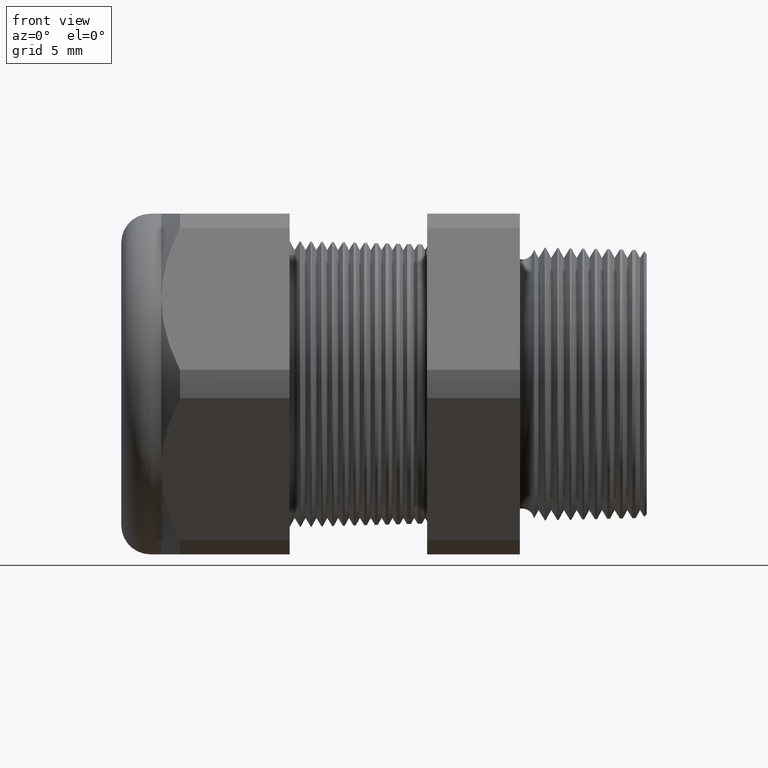
[diagram: clean part render]
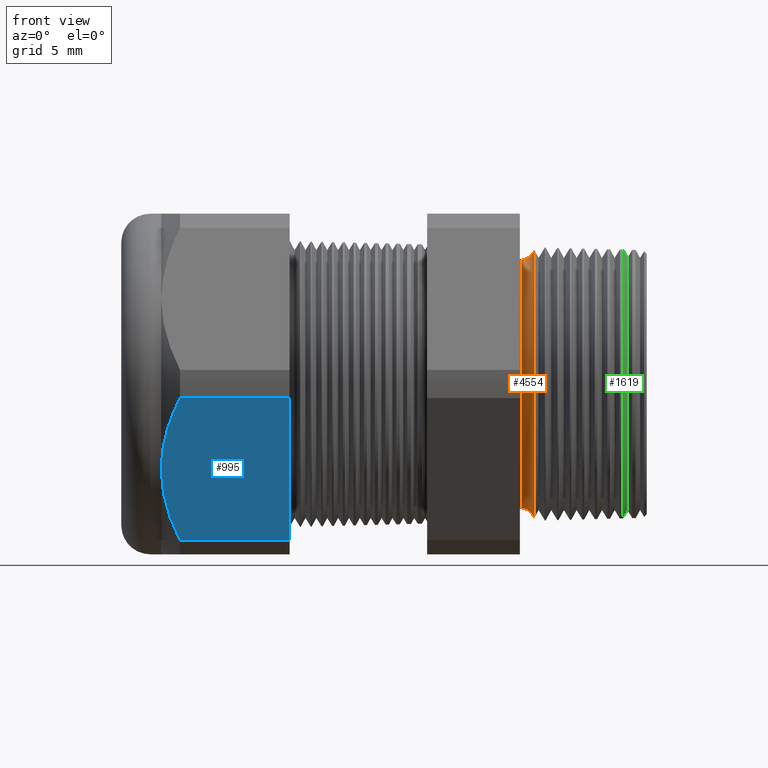
[diagram: same view with three faces highlighted in distinct colors, each labeled with its STEP entity id]
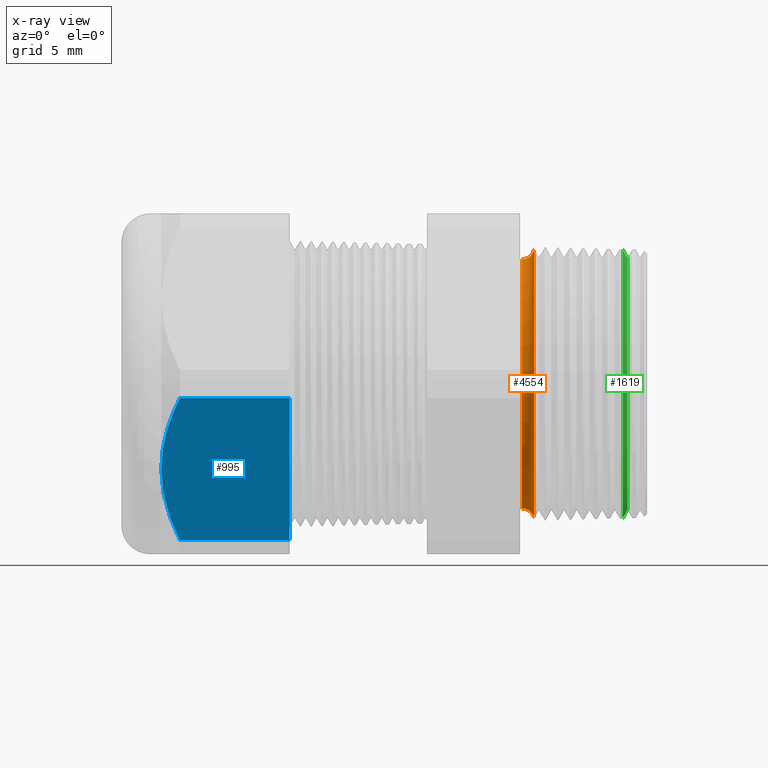
[diagram: x-ray of the same camera — body ghosted, the three highlighted faces saturated]
A machine part, front view with three faces highlighted in distinct colors.
The next image is the same camera in x-ray (body ghosted, the three faces saturated) — at least one of them is partly hidden behind the body in this view.
Their STEP definitions:

[orange] entity #4554 — the highlighted toroidal blend (fillet) surface has major radius 9.6104 mm and minor (blend) radius 0.889 mm.
#4554 = ADVANCED_FACE ( 'NONE', ( #4878 ), #4877, .F. ) ;
#4555 = VERTEX_POINT ( 'NONE', #4876 ) ;
#4560 = VERTEX_POINT ( 'NONE', #4924 ) ;
#4563 = EDGE_CURVE ( 'NONE', #4555, #4560, #4917, .T. ) ;
#4566 = VERTEX_POINT ( 'NONE', #4908 ) ;
#4569 = EDGE_CURVE ( 'NONE', #4570, #4566, #4907, .T. ) ;
#4570 = VERTEX_POINT ( 'NONE', #4902 ) ;
#4872 = DIRECTION ( 'NONE',  ( 0.0000000000000000000, 0.0000000000000000000, -1.000000000000000000 ) ) ;
#4873 = DIRECTION ( 'NONE',  ( 1.000000000000000000, 0.0000000000000000000, 0.0000000000000000000 ) ) ;
#4874 = CARTESIAN_POINT ( 'NONE',  ( -0.3049999999999999400, 0.0000000000000000000, 0.0000000000000000000 ) ) ;
#4875 = AXIS2_PLACEMENT_3D ( 'NONE', #4874, #4873, #4872 ) ;
#4876 = CARTESIAN_POINT ( 'NONE',  ( -0.2708463023710456800, 0.0000000000000000000, 0.3707104400814421600 ) ) ;
#4877 = TOROIDAL_SURFACE ( 'NONE', #4875, 0.3783605994438361000, 0.03499999999999994800 ) ;
#4878 = FACE_OUTER_BOUND ( 'NONE', #5326, .T. ) ;
#4902 = CARTESIAN_POINT ( 'NONE',  ( -0.2708463023710456800, 4.539893538562447500E-017, -0.3707104400814421600 ) ) ;
#4903 = DIRECTION ( 'NONE',  ( 0.0000000000000000000, 0.0000000000000000000, -1.000000000000000000 ) ) ;
#4904 = DIRECTION ( 'NONE',  ( 0.0000000000000000000, -1.000000000000000000, 0.0000000000000000000 ) ) ;
#4905 = CARTESIAN_POINT ( 'NONE',  ( -0.3049999999999999400, 0.0000000000000000000, -0.3783605994438361000 ) ) ;
#4906 = AXIS2_PLACEMENT_3D ( 'NONE', #4905, #4904, #4903 ) ;
#4907 = CIRCLE ( 'NONE', #4906, 0.03499999999999996900 ) ;
#4908 = CARTESIAN_POINT ( 'NONE',  ( -0.3049999999999999400, 0.0000000000000000000, -0.3433605994438361200 ) ) ;
#4914 = DIRECTION ( 'NONE',  ( 0.0000000000000000000, 1.224646799147352700E-016, 1.000000000000000000 ) ) ;
#4915 = DIRECTION ( 'NONE',  ( 0.0000000000000000000, 1.000000000000000000, -1.224646799147353200E-016 ) ) ;
#4916 = AXIS2_PLACEMENT_3D ( 'NONE', #4923, #4915, #4914 ) ;
#4917 = CIRCLE ( 'NONE', #4916, 0.03499999999999996900 ) ;
#4923 = CARTESIAN_POINT ( 'NONE',  ( -0.3049999999999999400, 4.633580970323677100E-017, 0.3783605994438361000 ) ) ;
#4924 = CARTESIAN_POINT ( 'NONE',  ( -0.3049999999999999400, 4.204954590622103200E-017, 0.3433605994438361200 ) ) ;
#4980 = DIRECTION ( 'NONE',  ( 0.0000000000000000000, 0.0000000000000000000, 1.000000000000000000 ) ) ;
#4981 = DIRECTION ( 'NONE',  ( 1.000000000000000000, 0.0000000000000000000, 0.0000000000000000000 ) ) ;
#4982 = AXIS2_PLACEMENT_3D ( 'NONE', #4989, #4981, #4980 ) ;
#4983 = CIRCLE ( 'NONE', #4982, 0.3707104400814421600 ) ;
#4984 = DIRECTION ( 'NONE',  ( 0.0000000000000000000, 0.0000000000000000000, -1.000000000000000000 ) ) ;
#4985 = DIRECTION ( 'NONE',  ( 1.000000000000000000, 0.0000000000000000000, 0.0000000000000000000 ) ) ;
#4986 = CARTESIAN_POINT ( 'NONE',  ( -0.3049999999999999400, 0.0000000000000000000, 0.0000000000000000000 ) ) ;
#4987 = AXIS2_PLACEMENT_3D ( 'NONE', #4986, #4985, #4984 ) ;
#4988 = CIRCLE ( 'NONE', #4987, 0.3433605994438361200 ) ;
#4989 = CARTESIAN_POINT ( 'NONE',  ( -0.2708463023710456800, 0.0000000000000000000, 0.0000000000000000000 ) ) ;
#5155 = ORIENTED_EDGE ( 'NONE', *, *, #4569, .F. ) ;
#5157 = ORIENTED_EDGE ( 'NONE', *, *, #5238, .F. ) ;
#5193 = EDGE_CURVE ( 'NONE', #4560, #4566, #4988, .T. ) ;
#5238 = EDGE_CURVE ( 'NONE', #4555, #4570, #4983, .T. ) ;
#5325 = ORIENTED_EDGE ( 'NONE', *, *, #5193, .T. ) ;
#5326 = EDGE_LOOP ( 'NONE', ( #5327, #5325, #5155, #5157 ) ) ;
#5327 = ORIENTED_EDGE ( 'NONE', *, *, #4563, .T. ) ;

[blue] entity #995 — the highlighted planar face has unit normal (0, -0.866, -0.5).
#972 = VERTEX_POINT ( 'NONE', #3585 ) ;
#973 = ORIENTED_EDGE ( 'NONE', *, *, #974, .T. ) ;
#974 = EDGE_CURVE ( 'NONE', #972, #975, #3630, .T. ) ;
#975 = VERTEX_POINT ( 'NONE', #3629 ) ;
#976 = ORIENTED_EDGE ( 'NONE', *, *, #977, .F. ) ;
#977 = EDGE_CURVE ( 'NONE', #978, #975, #3628, .T. ) ;
#978 = VERTEX_POINT ( 'NONE', #3618 ) ;
#979 = ORIENTED_EDGE ( 'NONE', *, *, #980, .F. ) ;
#980 = EDGE_CURVE ( 'NONE', #992, #978, #3617, .T. ) ;
#989 = VERTEX_POINT ( 'NONE', #3663 ) ;
#991 = EDGE_CURVE ( 'NONE', #992, #989, #3662, .T. ) ;
#992 = VERTEX_POINT ( 'NONE', #3658 ) ;
#995 = ADVANCED_FACE ( 'NONE', ( #3652 ), #3651, .T. ) ;
#996 = EDGE_LOOP ( 'NONE', ( #997, #998, #973, #976, #979 ) ) ;
#997 = ORIENTED_EDGE ( 'NONE', *, *, #991, .T. ) ;
#998 = ORIENTED_EDGE ( 'NONE', *, *, #999, .T. ) ;
#999 = EDGE_CURVE ( 'NONE', #989, #972, #3646, .T. ) ;
#3585 = CARTESIAN_POINT ( 'NONE',  ( -1.299763779527559200, -0.4070319397786861200, -0.2350000000000000100 ) ) ;
#3614 = DIRECTION ( 'NONE',  ( 0.0000000000000000000, 0.5000000000000001100, -0.8660254037844384900 ) ) ;
#3615 = VECTOR ( 'NONE', #3614, 39.37007874015748900 ) ;
#3616 = CARTESIAN_POINT ( 'NONE',  ( -0.9454330708661420300, -0.3082819397786861200, -0.4060400172474268900 ) ) ;
#3617 = LINE ( 'NONE', #3616, #3615 ) ;
#3618 = CARTESIAN_POINT ( 'NONE',  ( -0.9454330708661420300, -0.2938165587564942600, -0.4310947921287053300 ) ) ;
#3619 = DIRECTION ( 'NONE',  ( -1.000000000000000000, 0.0000000000000000000, 0.0000000000000000000 ) ) ;
#3620 = VECTOR ( 'NONE', #3619, 39.37007874015748100 ) ;
#3621 = CARTESIAN_POINT ( 'NONE',  ( 0.04000000000000011900, -0.2938165587564942600, -0.4310947921287053300 ) ) ;
#3622 = CARTESIAN_POINT ( 'NONE',  ( -1.248063779527559300, -0.2938165587564942600, -0.4310947921287053300 ) ) ;
#3623 = CARTESIAN_POINT ( 'NONE',  ( -1.263717189021966700, -0.3118494083116968300, -0.3998609804938491100 ) ) ;
#3624 = CARTESIAN_POINT ( 'NONE',  ( -1.276822062588142300, -0.3304876304616236600, -0.3675786327674196400 ) ) ;
#3625 = CARTESIAN_POINT ( 'NONE',  ( -1.294818111347314700, -0.3682441305491639400, -0.3021824562998216000 ) ) ;
#3626 = CARTESIAN_POINT ( 'NONE',  ( -1.299763779527559200, -0.3874426189162282200, -0.2689296990195459400 ) ) ;
#3627 = CARTESIAN_POINT ( 'NONE',  ( -1.299763779527559200, -0.4070319397786861200, -0.2350000000000000100 ) ) ;
#3628 = LINE ( 'NONE', #3621, #3620 ) ;
#3629 = CARTESIAN_POINT ( 'NONE',  ( -1.248063779527559300, -0.2938165587564942600, -0.4310947921287053300 ) ) ;
#3630 = B_SPLINE_CURVE_WITH_KNOTS ( 'NONE', 3,
 ( #3627, #3626, #3625, #3624, #3623, #3622 ),
 .UNSPECIFIED., .F., .F.,
 ( 4, 2, 4 ),
 ( 0.005903107334592318600, 0.008852512982428784000, 0.01180191863026525300 ),
 .UNSPECIFIED. ) ;
#3641 = CARTESIAN_POINT ( 'NONE',  ( -1.290164085422761200, -0.4556379823307484300, -0.1508118647449733200 ) ) ;
#3642 = CARTESIAN_POINT ( 'NONE',  ( -1.276620445010038200, -0.4838883643614173000, -0.1018807677346239400 ) ) ;
#3643 = CARTESIAN_POINT ( 'NONE',  ( -1.263697825203295100, -0.5022367785154768800, -0.07010038218147664200 ) ) ;
#3644 = CARTESIAN_POINT ( 'NONE',  ( -1.248063779527559300, -0.5202473208008777700, -0.03890520787129500600 ) ) ;
#3646 = B_SPLINE_CURVE_WITH_KNOTS ( 'NONE', 3,
 ( #3644, #3643, #3642, #3641, #3700, #3699, #3698, #3697, #3696, #3695 ),
 .UNSPECIFIED., .F., .F.,
 ( 4, 2, 2, 2, 4 ),
 ( 2.483251536717501700E-007, 0.002951677829872997400, 0.004427392582232655800, 0.005165249958412486800, 0.005903107334592318600 ),
 .UNSPECIFIED. ) ;
#3647 = DIRECTION ( 'NONE',  ( 0.0000000000000000000, 0.5000000000000001100, -0.8660254037844384900 ) ) ;
#3648 = DIRECTION ( 'NONE',  ( 0.0000000000000000000, -0.8660254037844386000, -0.5000000000000002200 ) ) ;
#3649 = CARTESIAN_POINT ( 'NONE',  ( 0.04000000000000011900, -0.2938165587564944300, -0.4310947921287051600 ) ) ;
#3650 = AXIS2_PLACEMENT_3D ( 'NONE', #3649, #3648, #3647 ) ;
#3651 = PLANE ( 'NONE',  #3650 ) ;
#3652 = FACE_OUTER_BOUND ( 'NONE', #996, .T. ) ;
#3658 = CARTESIAN_POINT ( 'NONE',  ( -0.9454330708661420300, -0.5202473208008777700, -0.03890520787129494300 ) ) ;
#3659 = DIRECTION ( 'NONE',  ( -1.000000000000000000, 0.0000000000000000000, 0.0000000000000000000 ) ) ;
#3660 = VECTOR ( 'NONE', #3659, 39.37007874015748100 ) ;
#3661 = CARTESIAN_POINT ( 'NONE',  ( 0.04000000000000011900, -0.5202473208008777700, -0.03890520787129494300 ) ) ;
#3662 = LINE ( 'NONE', #3661, #3660 ) ;
#3663 = CARTESIAN_POINT ( 'NONE',  ( -1.248063779527559300, -0.5202473208008777700, -0.03890520787129500600 ) ) ;
#3695 = CARTESIAN_POINT ( 'NONE',  ( -1.299763779527559200, -0.4070319397786861200, -0.2350000000000000100 ) ) ;
#3696 = CARTESIAN_POINT ( 'NONE',  ( -1.299763779527559400, -0.4119326305003306900, -0.2265117546779304400 ) ) ;
#3697 = CARTESIAN_POINT ( 'NONE',  ( -1.299453644849873900, -0.4168781440523184300, -0.2179458739363668300 ) ) ;
#3698 = CARTESIAN_POINT ( 'NONE',  ( -1.298221849142434900, -0.4267040029977488000, -0.2009269870148766000 ) ) ;
#3699 = CARTESIAN_POINT ( 'NONE',  ( -1.297304216752655800, -0.4315793332085022800, -0.1924826673861758100 ) ) ;
#3700 = CARTESIAN_POINT ( 'NONE',  ( -1.293700751481475600, -0.4460993342073095200, -0.1673332879302910400 ) ) ;

[green] entity #1619 — the highlighted conical surface has half-angle 61.5 deg.
#25 = EDGE_CURVE ( 'NONE', #39, #55, #1724, .T. ) ;
#39 = VERTEX_POINT ( 'NONE', #1760 ) ;
#41 = VERTEX_POINT ( 'NONE', #1754 ) ;
#53 = EDGE_CURVE ( 'NONE', #41, #54, #1745, .T. ) ;
#54 = VERTEX_POINT ( 'NONE', #1806 ) ;
#55 = VERTEX_POINT ( 'NONE', #1805 ) ;
#739 = EDGE_CURVE ( 'NONE', #54, #55, #3146, .T. ) ;
#1619 = ADVANCED_FACE ( 'NONE', ( #4683 ), #4682, .T. ) ;
#1620 = EDGE_LOOP ( 'NONE', ( #1621, #1622, #1624, #1625 ) ) ;
#1621 = ORIENTED_EDGE ( 'NONE', *, *, #25, .F. ) ;
#1622 = ORIENTED_EDGE ( 'NONE', *, *, #1623, .F. ) ;
#1623 = EDGE_CURVE ( 'NONE', #41, #39, #4740, .T. ) ;
#1624 = ORIENTED_EDGE ( 'NONE', *, *, #53, .T. ) ;
#1625 = ORIENTED_EDGE ( 'NONE', *, *, #739, .T. ) ;
#1721 = DIRECTION ( 'NONE',  ( -0.4771587602596195100, 1.076240564057387400E-016, -0.8788171126619593900 ) ) ;
#1722 = VECTOR ( 'NONE', #1721, 39.37007874015748100 ) ;
#1723 = CARTESIAN_POINT ( 'NONE',  ( -0.02999999999999995400, 4.633580970323677100E-017, -0.3783605994438361000 ) ) ;
#1724 = LINE ( 'NONE', #1723, #1722 ) ;
#1742 = DIRECTION ( 'NONE',  ( -0.4771587602596195100, 0.0000000000000000000, 0.8788171126619593900 ) ) ;
#1743 = VECTOR ( 'NONE', #1742, 39.37007874015748100 ) ;
#1744 = CARTESIAN_POINT ( 'NONE',  ( -0.02999999999999995400, 0.0000000000000000000, 0.3783605994438361000 ) ) ;
#1745 = LINE ( 'NONE', #1744, #1743 ) ;
#1754 = CARTESIAN_POINT ( 'NONE',  ( -0.01347073567907512900, 0.0000000000000000000, 0.3479174816500060800 ) ) ;
#1760 = CARTESIAN_POINT ( 'NONE',  ( -0.01347073567907512900, 4.401627202238103200E-017, -0.3479174816500060800 ) ) ;
#1805 = CARTESIAN_POINT ( 'NONE',  ( -0.02596160015483822700, 4.543821516315070200E-017, -0.3709227921828554000 ) ) ;
#1806 = CARTESIAN_POINT ( 'NONE',  ( -0.02596160015483822700, 0.0000000000000000000, 0.3709227921828554000 ) ) ;
#3085 = CARTESIAN_POINT ( 'NONE',  ( -0.02596160015483822700, 0.0000000000000000000, 0.0000000000000000000 ) ) ;
#3143 = DIRECTION ( 'NONE',  ( 0.0000000000000000000, 0.0000000000000000000, 1.000000000000000000 ) ) ;
#3144 = DIRECTION ( 'NONE',  ( 1.000000000000000000, 0.0000000000000000000, 0.0000000000000000000 ) ) ;
#3145 = AXIS2_PLACEMENT_3D ( 'NONE', #3085, #3144, #3143 ) ;
#3146 = CIRCLE ( 'NONE', #3145, 0.3709227921828554000 ) ;
#4679 = DIRECTION ( 'NONE',  ( 0.0000000000000000000, 0.0000000000000000000, 1.000000000000000000 ) ) ;
#4680 = DIRECTION ( 'NONE',  ( -1.000000000000000000, 0.0000000000000000000, 0.0000000000000000000 ) ) ;
#4681 = AXIS2_PLACEMENT_3D ( 'NONE', #4688, #4680, #4679 ) ;
#4682 = CONICAL_SURFACE ( 'NONE', #4681, 0.3783605994438361000, 1.073377489976500100 ) ;
#4683 = FACE_OUTER_BOUND ( 'NONE', #1620, .T. ) ;
#4688 = CARTESIAN_POINT ( 'NONE',  ( -0.02999999999999995400, 0.0000000000000000000, 0.0000000000000000000 ) ) ;
#4736 = DIRECTION ( 'NONE',  ( 0.0000000000000000000, 0.0000000000000000000, -1.000000000000000000 ) ) ;
#4737 = DIRECTION ( 'NONE',  ( 1.000000000000000000, 0.0000000000000000000, 0.0000000000000000000 ) ) ;
#4738 = CARTESIAN_POINT ( 'NONE',  ( -0.01347073567907512900, 0.0000000000000000000, 0.0000000000000000000 ) ) ;
#4739 = AXIS2_PLACEMENT_3D ( 'NONE', #4738, #4737, #4736 ) ;
#4740 = CIRCLE ( 'NONE', #4739, 0.3479174816500060800 ) ;